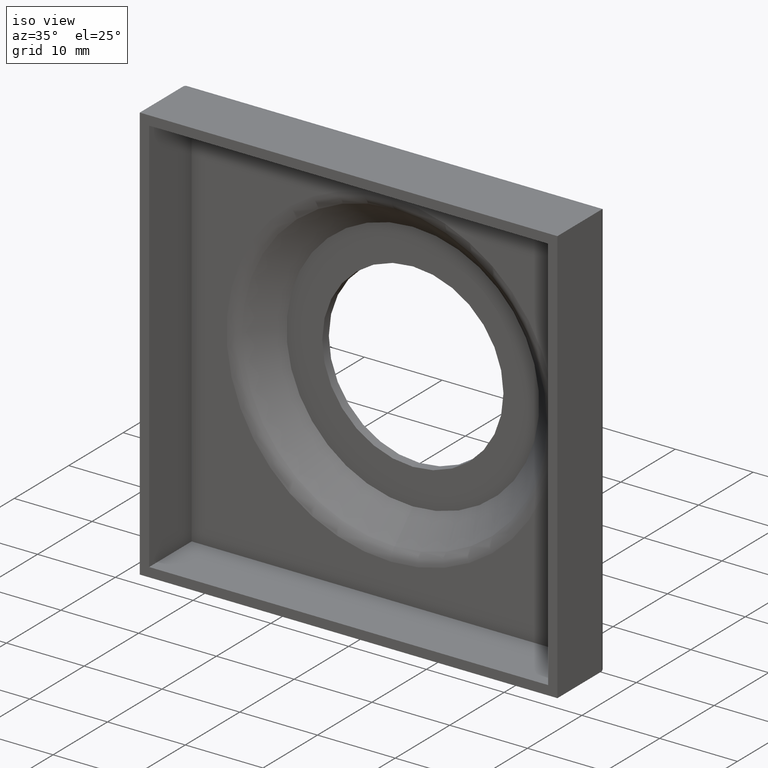
[diagram: clean part render]
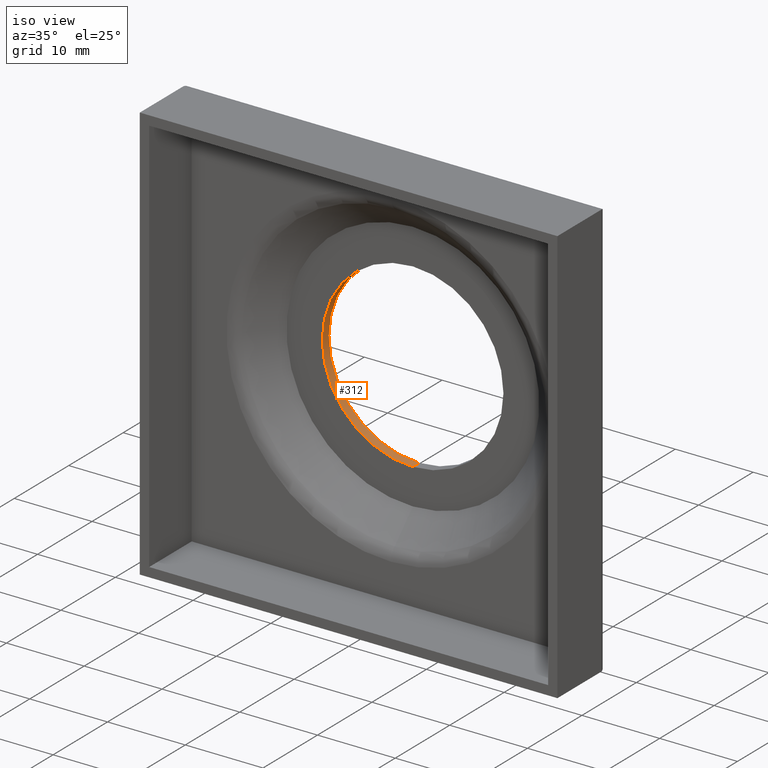
[diagram: same view with one face highlighted and labeled with its STEP entity id]
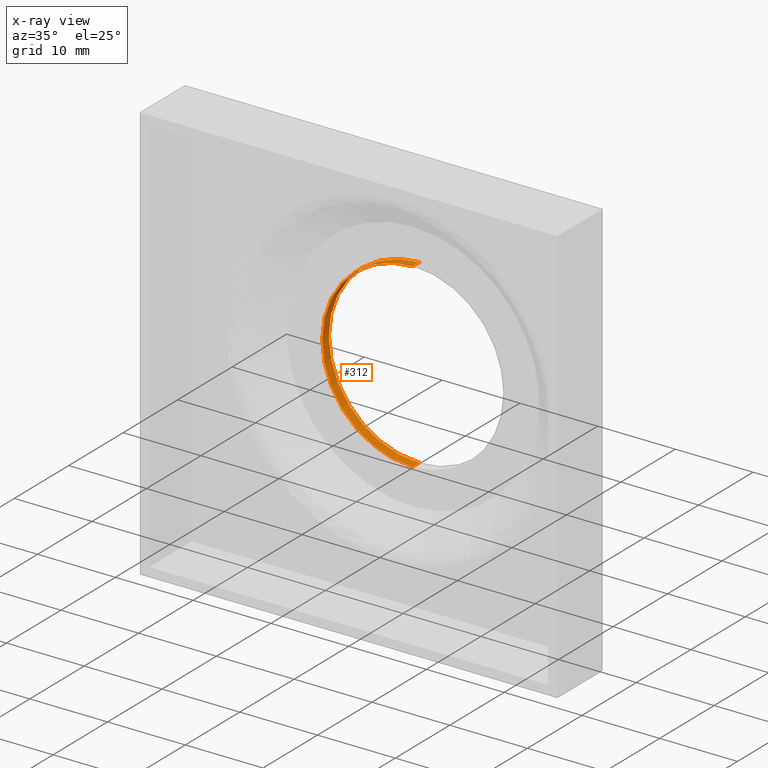
[diagram: x-ray of the same camera — body ghosted, the highlighted face saturated]
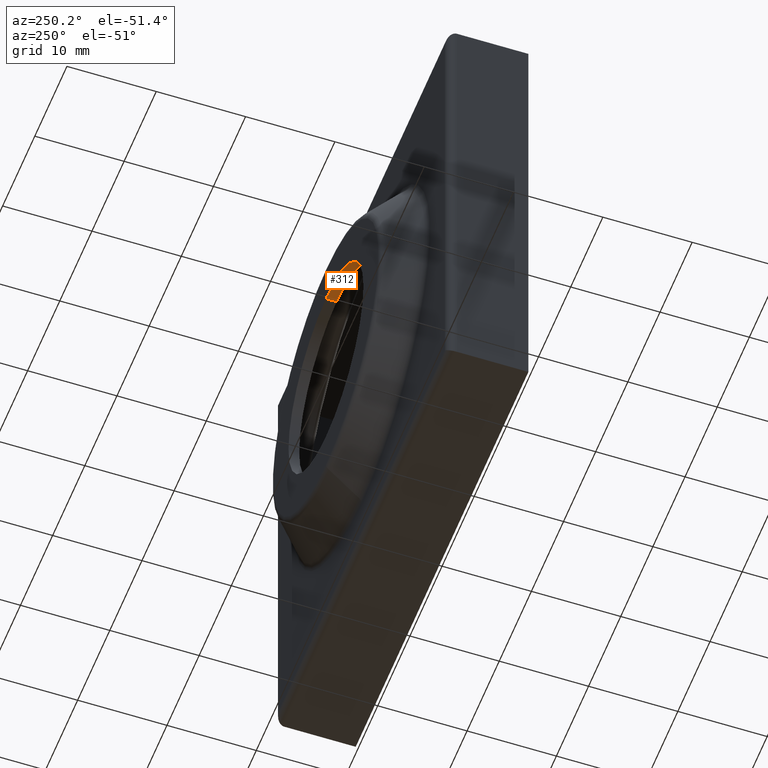
[diagram: same view with one face highlighted and labeled with its STEP entity id]
A machine part, iso view. The second image highlights one B-rep face of the part: STEP entity #312.
The next image is the same camera in x-ray: the body ghosted, the highlighted face saturated — about 0% of this face is hidden behind the body in this view.
A second angle (auxiliary view) of the same face is appended — the face is thin or edge-on in the first view.
In plain terms, the highlighted cylindrical surface (partial cylindrical patch) has radius 11.65 mm, axis along (-0, 1, -0).
Its self-contained STEP definition (entity closure, byte-faithful):
#1 = CARTESIAN_POINT ( 'NONE',  ( 0.0000000000000000000, 0.0000000000000000000, 0.0000000000000000000 ) ) ;
#20 = LINE ( 'NONE', #625, #188 ) ;
#52 = CARTESIAN_POINT ( 'NONE',  ( 0.0000000000000000000, 0.0000000000000000000, 11.65000000000000000 ) ) ;
#68 = VERTEX_POINT ( 'NONE', #179 ) ;
#92 = CIRCLE ( 'NONE', #119, 11.65000000000000000 ) ;
#115 = DIRECTION ( 'NONE',  ( -0.0000000000000000000, 1.000000000000000000, -0.0000000000000000000 ) ) ;
#119 = AXIS2_PLACEMENT_3D ( 'NONE', #653, #148, #338 ) ;
#129 = EDGE_CURVE ( 'NONE', #68, #824, #20, .T. ) ;
#148 = DIRECTION ( 'NONE',  ( 0.0000000000000000000, 1.000000000000000000, 0.0000000000000000000 ) ) ;
#168 = CARTESIAN_POINT ( 'NONE',  ( 1.426713521006666200E-015, 13.00000000000000000, -11.65000000000000000 ) ) ;
#179 = CARTESIAN_POINT ( 'NONE',  ( 1.426713521006666200E-015, 11.79999999999999900, -11.65000000000000000 ) ) ;
#188 = VECTOR ( 'NONE', #115, 1000.000000000000000 ) ;
#195 = AXIS2_PLACEMENT_3D ( 'NONE', #1, #452, #392 ) ;
#252 = LINE ( 'NONE', #52, #732 ) ;
#312 = ADVANCED_FACE ( 'NONE', ( #717 ), #355, .F. ) ;
#327 = ORIENTED_EDGE ( 'NONE', *, *, #671, .F. ) ;
#333 = ORIENTED_EDGE ( 'NONE', *, *, #129, .T. ) ;
#338 = DIRECTION ( 'NONE',  ( 0.0000000000000000000, 0.0000000000000000000, 1.000000000000000000 ) ) ;
#355 = CYLINDRICAL_SURFACE ( 'NONE', #195, 11.65000000000000000 ) ;
#392 = DIRECTION ( 'NONE',  ( 0.0000000000000000000, 0.0000000000000000000, 1.000000000000000000 ) ) ;
#416 = DIRECTION ( 'NONE',  ( 0.0000000000000000000, 0.0000000000000000000, 1.000000000000000000 ) ) ;
#444 = VERTEX_POINT ( 'NONE', #615 ) ;
#452 = DIRECTION ( 'NONE',  ( -0.0000000000000000000, 1.000000000000000000, -0.0000000000000000000 ) ) ;
#535 = CIRCLE ( 'NONE', #820, 11.65000000000000000 ) ;
#540 = CARTESIAN_POINT ( 'NONE',  ( 0.0000000000000000000, 13.00000000000000000, 11.65000000000000000 ) ) ;
#585 = ORIENTED_EDGE ( 'NONE', *, *, #590, .F. ) ;
#590 = EDGE_CURVE ( 'NONE', #444, #660, #252, .T. ) ;
#601 = DIRECTION ( 'NONE',  ( 0.0000000000000000000, 1.000000000000000000, 0.0000000000000000000 ) ) ;
#615 = CARTESIAN_POINT ( 'NONE',  ( 0.0000000000000000000, 11.79999999999999900, 11.65000000000000000 ) ) ;
#624 = EDGE_CURVE ( 'NONE', #824, #660, #535, .T. ) ;
#625 = CARTESIAN_POINT ( 'NONE',  ( 1.426713521006666200E-015, 0.0000000000000000000, -11.65000000000000000 ) ) ;
#653 = CARTESIAN_POINT ( 'NONE',  ( 0.0000000000000000000, 11.79999999999999900, 0.0000000000000000000 ) ) ;
#660 = VERTEX_POINT ( 'NONE', #540 ) ;
#671 = EDGE_CURVE ( 'NONE', #68, #444, #92, .T. ) ;
#692 = DIRECTION ( 'NONE',  ( -0.0000000000000000000, 1.000000000000000000, -0.0000000000000000000 ) ) ;
#697 = ORIENTED_EDGE ( 'NONE', *, *, #624, .T. ) ;
#717 = FACE_OUTER_BOUND ( 'NONE', #762, .T. ) ;
#732 = VECTOR ( 'NONE', #692, 1000.000000000000000 ) ;
#762 = EDGE_LOOP ( 'NONE', ( #327, #333, #697, #585 ) ) ;
#805 = CARTESIAN_POINT ( 'NONE',  ( 0.0000000000000000000, 13.00000000000000000, 0.0000000000000000000 ) ) ;
#820 = AXIS2_PLACEMENT_3D ( 'NONE', #805, #601, #416 ) ;
#824 = VERTEX_POINT ( 'NONE', #168 ) ;